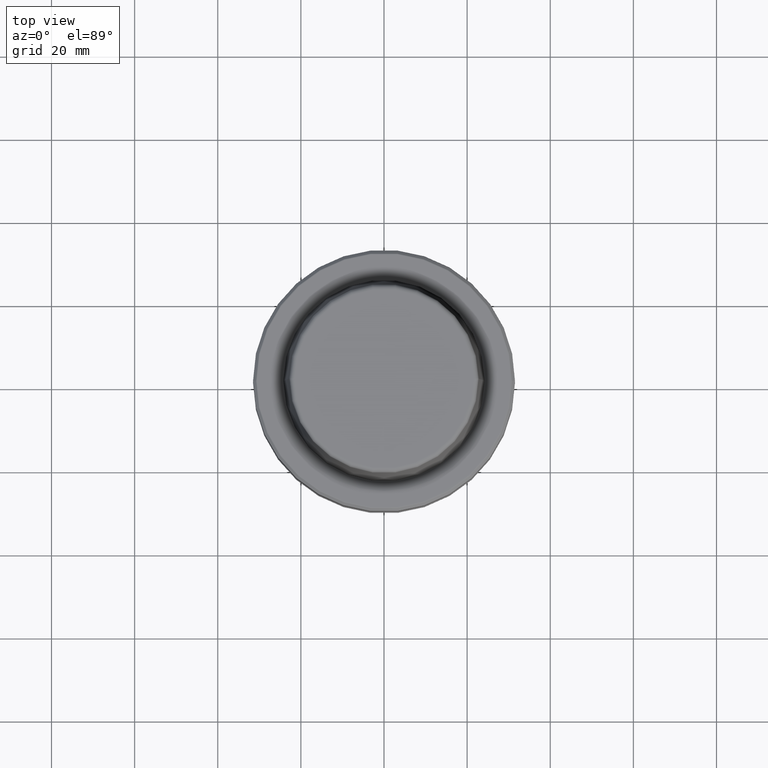
[diagram: clean part render]
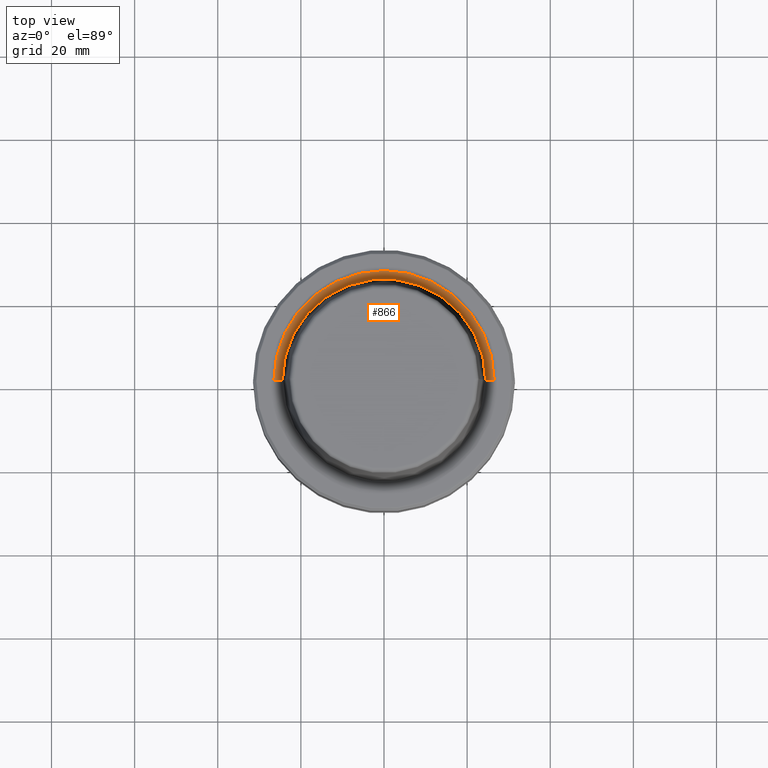
[diagram: same view with one face highlighted and labeled with its STEP entity id]
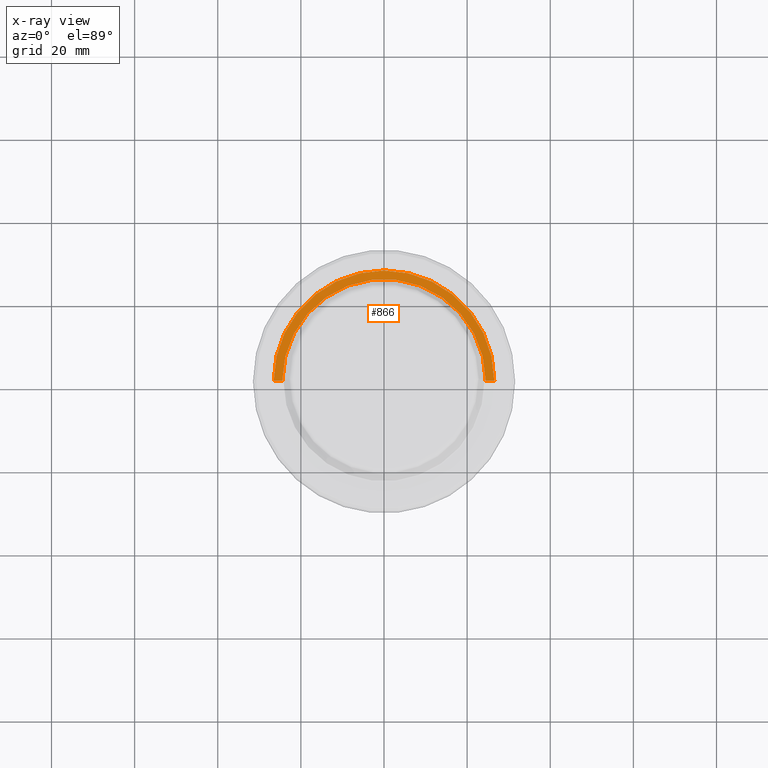
[diagram: x-ray of the same camera — body ghosted, the highlighted face saturated]
A machine part, top view. The second image highlights one B-rep face of the part: STEP entity #866.
The next image is the same camera in x-ray: the body ghosted, the highlighted face saturated — about 0% of this face is hidden behind the body in this view.
In plain terms, the highlighted conical surface has half-angle 80 deg.
Its self-contained STEP definition (entity closure, byte-faithful):
#123 = CIRCLE ( 'NONE', #588, 26.52499999999999900 ) ;
#173 = ORIENTED_EDGE ( 'NONE', *, *, #1119, .F. ) ;
#177 = DIRECTION ( 'NONE',  ( 1.000000000000000000, 0.0000000000000000000, 0.0000000000000000000 ) ) ;
#181 = DIRECTION ( 'NONE',  ( 0.9848077530122074700, 0.0000000000000000000, 0.1736481776669334700 ) ) ;
#216 = CARTESIAN_POINT ( 'NONE',  ( 0.0000000000000000000, 0.0000000000000000000, 0.0000000000000000000 ) ) ;
#236 = DIRECTION ( 'NONE',  ( -0.0000000000000000000, -0.0000000000000000000, 1.000000000000000000 ) ) ;
#269 = DIRECTION ( 'NONE',  ( -0.0000000000000000000, -0.0000000000000000000, 1.000000000000000000 ) ) ;
#285 = VERTEX_POINT ( 'NONE', #982 ) ;
#312 = DIRECTION ( 'NONE',  ( 1.000000000000000000, 0.0000000000000000000, 0.0000000000000000000 ) ) ;
#419 = ORIENTED_EDGE ( 'NONE', *, *, #597, .T. ) ;
#453 = AXIS2_PLACEMENT_3D ( 'NONE', #821, #236, #926 ) ;
#474 = AXIS2_PLACEMENT_3D ( 'NONE', #568, #269, #177 ) ;
#536 = ORIENTED_EDGE ( 'NONE', *, *, #1179, .F. ) ;
#541 = VECTOR ( 'NONE', #181, 1000.000000000000200 ) ;
#568 = CARTESIAN_POINT ( 'NONE',  ( 0.0000000000000000000, 0.0000000000000000000, 0.0000000000000000000 ) ) ;
#588 = AXIS2_PLACEMENT_3D ( 'NONE', #216, #900, #312 ) ;
#597 = EDGE_CURVE ( 'NONE', #934, #931, #123, .T. ) ;
#661 = FACE_OUTER_BOUND ( 'NONE', #730, .T. ) ;
#677 = CARTESIAN_POINT ( 'NONE',  ( -26.52499999999999900, 3.248375634738354300E-015, 0.0000000000000000000 ) ) ;
#707 = VECTOR ( 'NONE', #1064, 1000.000000000000200 ) ;
#730 = EDGE_LOOP ( 'NONE', ( #536, #173, #899, #419 ) ) ;
#746 = CARTESIAN_POINT ( 'NONE',  ( -26.52499999999999900, 3.248375634738354300E-015, 0.0000000000000000000 ) ) ;
#779 = CARTESIAN_POINT ( 'NONE',  ( 24.47682408883346700, 0.0000000000000000000, -0.3611486743758107700 ) ) ;
#790 = LINE ( 'NONE', #862, #541 ) ;
#821 = CARTESIAN_POINT ( 'NONE',  ( 0.0000000000000000000, 0.0000000000000000000, -0.3611486743758107700 ) ) ;
#843 = CARTESIAN_POINT ( 'NONE',  ( 26.52499999999999900, 0.0000000000000000000, 0.0000000000000000000 ) ) ;
#862 = CARTESIAN_POINT ( 'NONE',  ( 26.52499999999999900, 0.0000000000000000000, 0.0000000000000000000 ) ) ;
#866 = ADVANCED_FACE ( 'NONE', ( #661 ), #886, .F. ) ;
#886 = CONICAL_SURFACE ( 'NONE', #474, 26.52499999999999900, 1.396263401595460500 ) ;
#899 = ORIENTED_EDGE ( 'NONE', *, *, #1157, .T. ) ;
#900 = DIRECTION ( 'NONE',  ( -0.0000000000000000000, -0.0000000000000000000, 1.000000000000000000 ) ) ;
#926 = DIRECTION ( 'NONE',  ( 1.000000000000000000, 0.0000000000000000000, 0.0000000000000000000 ) ) ;
#931 = VERTEX_POINT ( 'NONE', #746 ) ;
#934 = VERTEX_POINT ( 'NONE', #843 ) ;
#958 = LINE ( 'NONE', #677, #707 ) ;
#982 = CARTESIAN_POINT ( 'NONE',  ( -24.47682408883346700, 3.122961031053313900E-015, -0.3611486743758107700 ) ) ;
#1020 = VERTEX_POINT ( 'NONE', #779 ) ;
#1064 = DIRECTION ( 'NONE',  ( -0.9848077530122074700, 1.206041662501897100E-016, 0.1736481776669334700 ) ) ;
#1119 = EDGE_CURVE ( 'NONE', #1020, #285, #1221, .T. ) ;
#1157 = EDGE_CURVE ( 'NONE', #1020, #934, #790, .T. ) ;
#1179 = EDGE_CURVE ( 'NONE', #285, #931, #958, .T. ) ;
#1221 = CIRCLE ( 'NONE', #453, 24.47682408883346700 ) ;